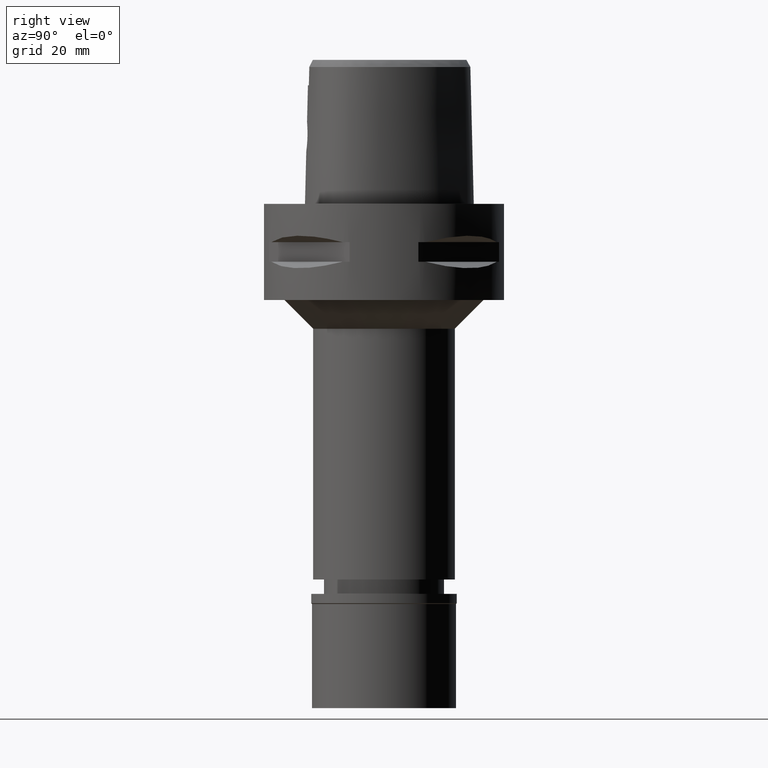
[diagram: clean part render]
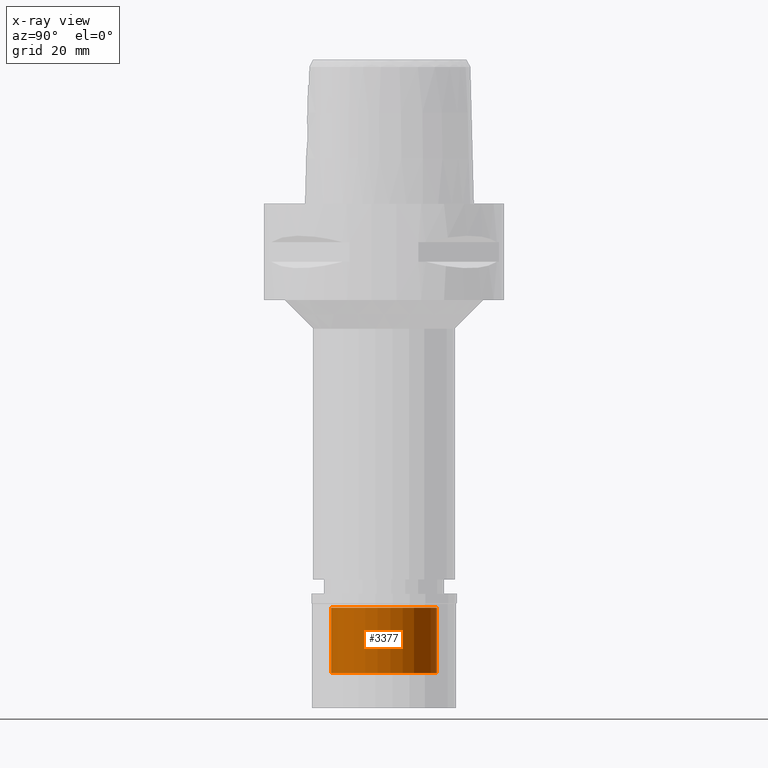
[diagram: x-ray — body ghosted, one internal face saturated and labeled with its STEP entity id]
A machine part, right view, then the same camera in x-ray: the body is ghosted and one INTERNAL B-rep face — a face not visible from any outside direction — is saturated and labeled: STEP entity #3377.
In plain terms, the highlighted cylindrical surface (partial cylindrical patch) has radius 11 mm, axis along (0, 0, -1).
Its self-contained STEP definition (entity closure, byte-faithful):
#190 = LINE ( 'NONE', #3604, #3877 ) ;
#194 = EDGE_CURVE ( 'NONE', #4626, #488, #4434, .T. ) ;
#214 = DIRECTION ( 'NONE',  ( 0.0000000000000000000, 0.0000000000000000000, 1.000000000000000000 ) ) ;
#226 = EDGE_CURVE ( 'NONE', #4291, #488, #190, .T. ) ;
#376 = ORIENTED_EDGE ( 'NONE', *, *, #194, .T. ) ;
#488 = VERTEX_POINT ( 'NONE', #4859 ) ;
#869 = DIRECTION ( 'NONE',  ( 0.0000000000000000000, 0.0000000000000000000, 1.000000000000000000 ) ) ;
#875 = ORIENTED_EDGE ( 'NONE', *, *, #1621, .T. ) ;
#939 = AXIS2_PLACEMENT_3D ( 'NONE', #1433, #2091, #4468 ) ;
#1024 = DIRECTION ( 'NONE',  ( 0.0000000000000000000, 0.0000000000000000000, -1.000000000000000000 ) ) ;
#1216 = ORIENTED_EDGE ( 'NONE', *, *, #4088, .T. ) ;
#1273 = CARTESIAN_POINT ( 'NONE',  ( 0.0000000000000000000, -11.00000000000000000, -2.899999999999999911 ) ) ;
#1410 = CIRCLE ( 'NONE', #2434, 11.00000000000000000 ) ;
#1433 = CARTESIAN_POINT ( 'NONE',  ( 0.0000000000000000000, 0.0000000000000000000, -2.899999999999999911 ) ) ;
#1621 = EDGE_CURVE ( 'NONE', #2472, #4626, #3933, .T. ) ;
#1791 = CARTESIAN_POINT ( 'NONE',  ( 0.0000000000000000000, -11.00000000000000000, -16.50000000000000000 ) ) ;
#2064 = CARTESIAN_POINT ( 'NONE',  ( 0.0000000000000000000, 0.0000000000000000000, -16.50000000000000000 ) ) ;
#2091 = DIRECTION ( 'NONE',  ( 0.0000000000000000000, 0.0000000000000000000, 1.000000000000000000 ) ) ;
#2434 = AXIS2_PLACEMENT_3D ( 'NONE', #2064, #3930, #2885 ) ;
#2472 = VERTEX_POINT ( 'NONE', #1791 ) ;
#2531 = DIRECTION ( 'NONE',  ( 0.0000000000000000000, -1.000000000000000000, 0.0000000000000000000 ) ) ;
#2736 = CARTESIAN_POINT ( 'NONE',  ( 0.0000000000000000000, -11.00000000000000000, -16.50000000000000000 ) ) ;
#2873 = FACE_OUTER_BOUND ( 'NONE', #3717, .T. ) ;
#2885 = DIRECTION ( 'NONE',  ( 0.0000000000000000000, 1.000000000000000000, 0.0000000000000000000 ) ) ;
#2907 = CYLINDRICAL_SURFACE ( 'NONE', #3536, 11.00000000000000000 ) ;
#2916 = CARTESIAN_POINT ( 'NONE',  ( 0.0000000000000000000, 11.00000000000000000, -16.50000000000000000 ) ) ;
#3377 = ADVANCED_FACE ( 'NONE', ( #2873 ), #2907, .F. ) ;
#3536 = AXIS2_PLACEMENT_3D ( 'NONE', #4428, #1024, #2531 ) ;
#3604 = CARTESIAN_POINT ( 'NONE',  ( 0.0000000000000000000, 11.00000000000000000, -16.50000000000000000 ) ) ;
#3717 = EDGE_LOOP ( 'NONE', ( #1216, #875, #376, #4605 ) ) ;
#3877 = VECTOR ( 'NONE', #214, 1000.000000000000000 ) ;
#3930 = DIRECTION ( 'NONE',  ( 0.0000000000000000000, 0.0000000000000000000, -1.000000000000000000 ) ) ;
#3933 = LINE ( 'NONE', #2736, #4334 ) ;
#4088 = EDGE_CURVE ( 'NONE', #4291, #2472, #1410, .T. ) ;
#4291 = VERTEX_POINT ( 'NONE', #2916 ) ;
#4334 = VECTOR ( 'NONE', #869, 1000.000000000000000 ) ;
#4428 = CARTESIAN_POINT ( 'NONE',  ( 0.0000000000000000000, 0.0000000000000000000, 0.0000000000000000000 ) ) ;
#4434 = CIRCLE ( 'NONE', #939, 11.00000000000000000 ) ;
#4468 = DIRECTION ( 'NONE',  ( 0.0000000000000000000, -1.000000000000000000, 0.0000000000000000000 ) ) ;
#4605 = ORIENTED_EDGE ( 'NONE', *, *, #226, .F. ) ;
#4626 = VERTEX_POINT ( 'NONE', #1273 ) ;
#4859 = CARTESIAN_POINT ( 'NONE',  ( 0.0000000000000000000, 11.00000000000000000, -2.899999999999999911 ) ) ;